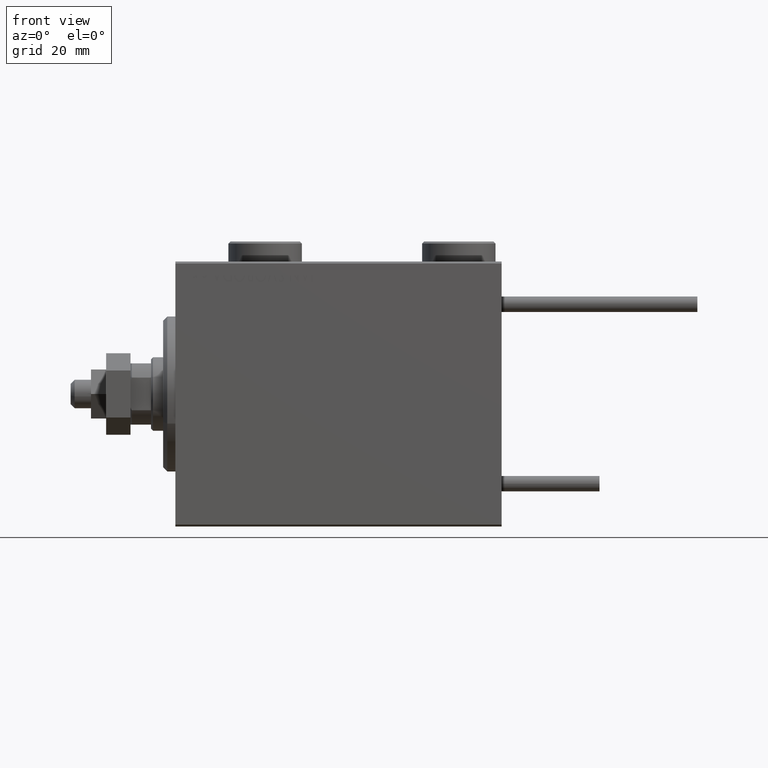
[diagram: clean part render]
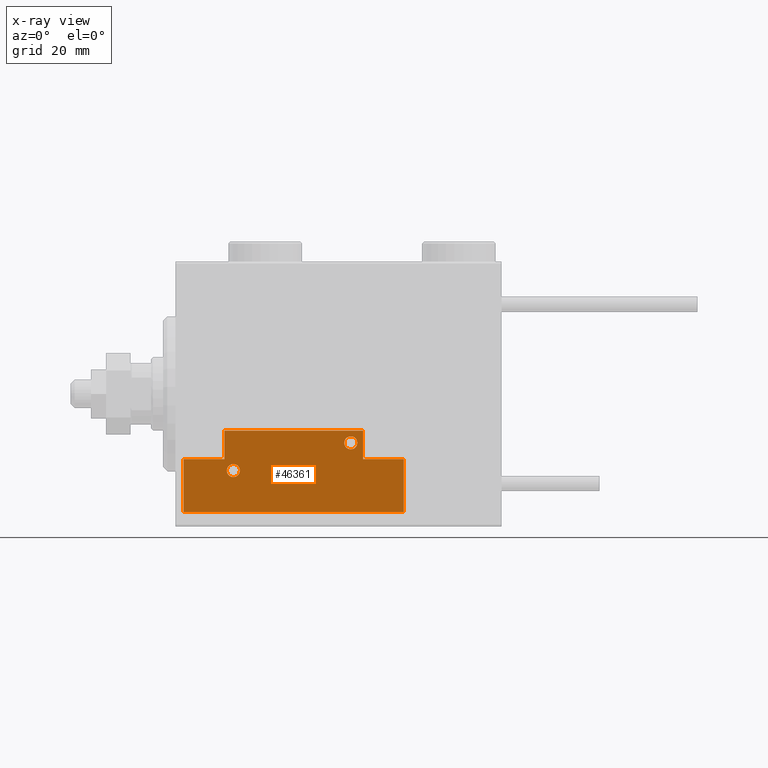
[diagram: x-ray — body ghosted, one internal face saturated and labeled with its STEP entity id]
A machine part, front view, then the same camera in x-ray: the body is ghosted and one INTERNAL B-rep face — a face not visible from any outside direction — is saturated and labeled: STEP entity #46361.
In plain terms, the highlighted planar face has unit normal (-0, 1, -0).
Its self-contained STEP definition (entity closure, byte-faithful):
#958 = ORIENTED_EDGE ( 'NONE', *, *, #12278, .F. ) ;
#2489 = VECTOR ( 'NONE', #4766, 1000.000000000000000 ) ;
#2549 = CARTESIAN_POINT ( 'NONE',  ( -16.99999999999999289, 7.000000000000003553, 0.000000000000000000 ) ) ;
#3351 = DIRECTION ( 'NONE',  ( 9.912705577010318647E-16, 1.000000000000000000, 0.000000000000000000 ) ) ;
#3392 = EDGE_CURVE ( 'NONE', #8958, #11341, #5701, .T. ) ;
#3826 = LINE ( 'NONE', #7756, #14115 ) ;
#4766 = DIRECTION ( 'NONE',  ( -8.006416042969869188E-16, -1.000000000000000000, 0.000000000000000000 ) ) ;
#4982 = DIRECTION ( 'NONE',  ( 1.000000000000000000, 0.000000000000000000, 0.000000000000000000 ) ) ;
#5147 = EDGE_CURVE ( 'NONE', #23219, #47680, #43909, .T. ) ;
#5617 = ORIENTED_EDGE ( 'NONE', *, *, #34969, .F. ) ;
#5686 = CARTESIAN_POINT ( 'NONE',  ( 15.59999999999999964, 3.000000000000002665, 0.000000000000000000 ) ) ;
#5701 = CIRCLE ( 'NONE', #22394, 1.600000000000000755 ) ;
#6482 = DIRECTION ( 'NONE',  ( 0.000000000000000000, 0.000000000000000000, 1.000000000000000000 ) ) ;
#6719 = CARTESIAN_POINT ( 'NONE',  ( 27.00000000000006395, 20.00000000000001776, 0.000000000000000000 ) ) ;
#6748 = DIRECTION ( 'NONE',  ( 0.000000000000000000, -1.000000000000000000, 0.000000000000000000 ) ) ;
#7573 = EDGE_LOOP ( 'NONE', ( #16426, #44451 ) ) ;
#7756 = CARTESIAN_POINT ( 'NONE',  ( -26.99999999999994671, 7.000000000000005329, 0.000000000000000000 ) ) ;
#8025 = DIRECTION ( 'NONE',  ( -1.000000000000000000, 6.424901762877062263E-17, 0.000000000000000000 ) ) ;
#8415 = CIRCLE ( 'NONE', #31724, 1.600000000000000755 ) ;
#8551 = CARTESIAN_POINT ( 'NONE',  ( 17.00000000000000000, 7.000000000000009770, 0.000000000000000000 ) ) ;
#8737 = CARTESIAN_POINT ( 'NONE',  ( 27.00000000000006395, 7.000000000000007994, 0.000000000000000000 ) ) ;
#8895 = CARTESIAN_POINT ( 'NONE',  ( 0.000000000000000000, 0.000000000000000000, 0.000000000000000000 ) ) ;
#8958 = VERTEX_POINT ( 'NONE', #15458 ) ;
#8987 = CIRCLE ( 'NONE', #26466, 1.600000000000000755 ) ;
#9591 = EDGE_LOOP ( 'NONE', ( #25191, #49648, #10340, #5617, #31707, #26088, #44179, #958 ) ) ;
#10050 = CARTESIAN_POINT ( 'NONE',  ( 12.39999999999999858, 3.000000000000002665, 0.000000000000000000 ) ) ;
#10340 = ORIENTED_EDGE ( 'NONE', *, *, #34109, .F. ) ;
#10408 = LINE ( 'NONE', #42449, #13547 ) ;
#11341 = VERTEX_POINT ( 'NONE', #15663 ) ;
#12278 = EDGE_CURVE ( 'NONE', #21317, #15183, #44302, .T. ) ;
#12847 = CARTESIAN_POINT ( 'NONE',  ( 13.99999999999999822, 3.000000000000002665, 0.000000000000000000 ) ) ;
#13547 = VECTOR ( 'NONE', #6748, 1000.000000000000000 ) ;
#13571 = DIRECTION ( 'NONE',  ( 0.000000000000000000, 0.000000000000000000, 1.000000000000000000 ) ) ;
#14115 = VECTOR ( 'NONE', #20247, 1000.000000000000000 ) ;
#15160 = VERTEX_POINT ( 'NONE', #2549 ) ;
#15183 = VERTEX_POINT ( 'NONE', #6719 ) ;
#15458 = CARTESIAN_POINT ( 'NONE',  ( -16.39999999999994884, 9.800000000000004263, 0.000000000000000000 ) ) ;
#15663 = CARTESIAN_POINT ( 'NONE',  ( -13.19999999999994778, 9.800000000000004263, 0.000000000000000000 ) ) ;
#15670 = CARTESIAN_POINT ( 'NONE',  ( 27.00000000000006395, 7.000000000000007994, 0.000000000000000000 ) ) ;
#15853 = CARTESIAN_POINT ( 'NONE',  ( 16.99999999999999289, 3.252606517456513302E-15, 0.000000000000000000 ) ) ;
#15918 = CARTESIAN_POINT ( 'NONE',  ( 16.99999999999999289, 3.252606517456513302E-15, 0.000000000000000000 ) ) ;
#16085 = CARTESIAN_POINT ( 'NONE',  ( 13.99999999999999822, 3.000000000000002665, 0.000000000000000000 ) ) ;
#16426 = ORIENTED_EDGE ( 'NONE', *, *, #5147, .T. ) ;
#16717 = FACE_BOUND ( 'NONE', #35934, .T. ) ;
#19140 = CARTESIAN_POINT ( 'NONE',  ( -16.99999999999999289, 3.252606517456513302E-15, 0.000000000000000000 ) ) ;
#20049 = EDGE_CURVE ( 'NONE', #47680, #23219, #8987, .T. ) ;
#20247 = DIRECTION ( 'NONE',  ( 1.000000000000000000, -1.734723475976815230E-16, 0.000000000000000000 ) ) ;
#21317 = VERTEX_POINT ( 'NONE', #8737 ) ;
#22394 = AXIS2_PLACEMENT_3D ( 'NONE', #46370, #6482, #38292 ) ;
#23219 = VERTEX_POINT ( 'NONE', #5686 ) ;
#23420 = EDGE_CURVE ( 'NONE', #40578, #15160, #3826, .T. ) ;
#24876 = EDGE_CURVE ( 'NONE', #36686, #40578, #51453, .T. ) ;
#25191 = ORIENTED_EDGE ( 'NONE', *, *, #37059, .F. ) ;
#25243 = DIRECTION ( 'NONE',  ( 1.000000000000000000, -1.734723475976796001E-16, 0.000000000000000000 ) ) ;
#25883 = VECTOR ( 'NONE', #25243, 1000.000000000000000 ) ;
#26088 = ORIENTED_EDGE ( 'NONE', *, *, #24876, .F. ) ;
#26466 = AXIS2_PLACEMENT_3D ( 'NONE', #16085, #36153, #28583 ) ;
#26970 = CARTESIAN_POINT ( 'NONE',  ( -26.99999999999993605, 20.00000000000002132, 0.000000000000000000 ) ) ;
#27590 = EDGE_CURVE ( 'NONE', #34682, #45283, #32253, .T. ) ;
#27606 = EDGE_CURVE ( 'NONE', #15183, #36686, #35675, .T. ) ;
#28061 = VERTEX_POINT ( 'NONE', #19140 ) ;
#28583 = DIRECTION ( 'NONE',  ( 1.000000000000000000, 0.000000000000000000, 0.000000000000000000 ) ) ;
#28734 = DIRECTION ( 'NONE',  ( 0.000000000000000000, 0.000000000000000000, 1.000000000000000000 ) ) ;
#29280 = CARTESIAN_POINT ( 'NONE',  ( 17.00000000000000000, 7.000000000000009770, 0.000000000000000000 ) ) ;
#29462 = CARTESIAN_POINT ( 'NONE',  ( -14.79999999999994920, 9.800000000000004263, 0.000000000000000000 ) ) ;
#30178 = LINE ( 'NONE', #46073, #44292 ) ;
#31707 = ORIENTED_EDGE ( 'NONE', *, *, #23420, .F. ) ;
#31724 = AXIS2_PLACEMENT_3D ( 'NONE', #29462, #13571, #45355 ) ;
#32098 = FACE_BOUND ( 'NONE', #7573, .T. ) ;
#32253 = LINE ( 'NONE', #15853, #39112 ) ;
#32620 = DIRECTION ( 'NONE',  ( -0.000000000000000000, 0.000000000000000000, 1.000000000000000000 ) ) ;
#33322 = DIRECTION ( 'NONE',  ( 1.000000000000000000, 0.000000000000000000, 0.000000000000000000 ) ) ;
#34109 = EDGE_CURVE ( 'NONE', #28061, #34682, #30178, .T. ) ;
#34682 = VERTEX_POINT ( 'NONE', #15918 ) ;
#34969 = EDGE_CURVE ( 'NONE', #15160, #28061, #10408, .T. ) ;
#35675 = LINE ( 'NONE', #51554, #36599 ) ;
#35934 = EDGE_LOOP ( 'NONE', ( #46032, #41015 ) ) ;
#36153 = DIRECTION ( 'NONE',  ( 0.000000000000000000, 0.000000000000000000, 1.000000000000000000 ) ) ;
#36599 = VECTOR ( 'NONE', #8025, 1000.000000000000000 ) ;
#36686 = VERTEX_POINT ( 'NONE', #26970 ) ;
#36751 = EDGE_CURVE ( 'NONE', #11341, #8958, #8415, .T. ) ;
#37059 = EDGE_CURVE ( 'NONE', #45283, #21317, #37224, .T. ) ;
#37224 = LINE ( 'NONE', #8551, #25883 ) ;
#38292 = DIRECTION ( 'NONE',  ( 1.000000000000000000, 0.000000000000000000, 0.000000000000000000 ) ) ;
#39112 = VECTOR ( 'NONE', #3351, 1000.000000000000000 ) ;
#40578 = VERTEX_POINT ( 'NONE', #40712 ) ;
#40712 = CARTESIAN_POINT ( 'NONE',  ( -26.99999999999994671, 7.000000000000005329, 0.000000000000000000 ) ) ;
#41015 = ORIENTED_EDGE ( 'NONE', *, *, #3392, .T. ) ;
#42449 = CARTESIAN_POINT ( 'NONE',  ( -16.99999999999999289, 7.000000000000003553, 0.000000000000000000 ) ) ;
#43909 = CIRCLE ( 'NONE', #49755, 1.600000000000000755 ) ;
#44179 = ORIENTED_EDGE ( 'NONE', *, *, #27606, .F. ) ;
#44292 = VECTOR ( 'NONE', #33322, 1000.000000000000000 ) ;
#44302 = LINE ( 'NONE', #15670, #47949 ) ;
#44451 = ORIENTED_EDGE ( 'NONE', *, *, #20049, .T. ) ;
#45131 = FACE_OUTER_BOUND ( 'NONE', #9591, .T. ) ;
#45283 = VERTEX_POINT ( 'NONE', #29280 ) ;
#45355 = DIRECTION ( 'NONE',  ( 1.000000000000000000, 0.000000000000000000, 0.000000000000000000 ) ) ;
#46032 = ORIENTED_EDGE ( 'NONE', *, *, #36751, .T. ) ;
#46073 = CARTESIAN_POINT ( 'NONE',  ( -16.99999999999999289, 3.252606517456513302E-15, 0.000000000000000000 ) ) ;
#46361 = ADVANCED_FACE ( 'NONE', ( #16717, #32098, #45131 ), #49038, .F. ) ;
#46370 = CARTESIAN_POINT ( 'NONE',  ( -14.79999999999994920, 9.800000000000004263, 0.000000000000000000 ) ) ;
#47542 = CARTESIAN_POINT ( 'NONE',  ( -26.99999999999993605, 20.00000000000002132, 0.000000000000000000 ) ) ;
#47680 = VERTEX_POINT ( 'NONE', #10050 ) ;
#47711 = DIRECTION ( 'NONE',  ( 0.000000000000000000, 1.000000000000000000, 0.000000000000000000 ) ) ;
#47949 = VECTOR ( 'NONE', #47711, 1000.000000000000000 ) ;
#48802 = DIRECTION ( 'NONE',  ( 1.000000000000000000, 0.000000000000000000, 0.000000000000000000 ) ) ;
#49038 = PLANE ( 'NONE',  #50236 ) ;
#49648 = ORIENTED_EDGE ( 'NONE', *, *, #27590, .F. ) ;
#49755 = AXIS2_PLACEMENT_3D ( 'NONE', #12847, #28734, #48802 ) ;
#50236 = AXIS2_PLACEMENT_3D ( 'NONE', #8895, #32620, #4982 ) ;
#51453 = LINE ( 'NONE', #47542, #2489 ) ;
#51554 = CARTESIAN_POINT ( 'NONE',  ( 27.00000000000006395, 20.00000000000001776, 0.000000000000000000 ) ) ;